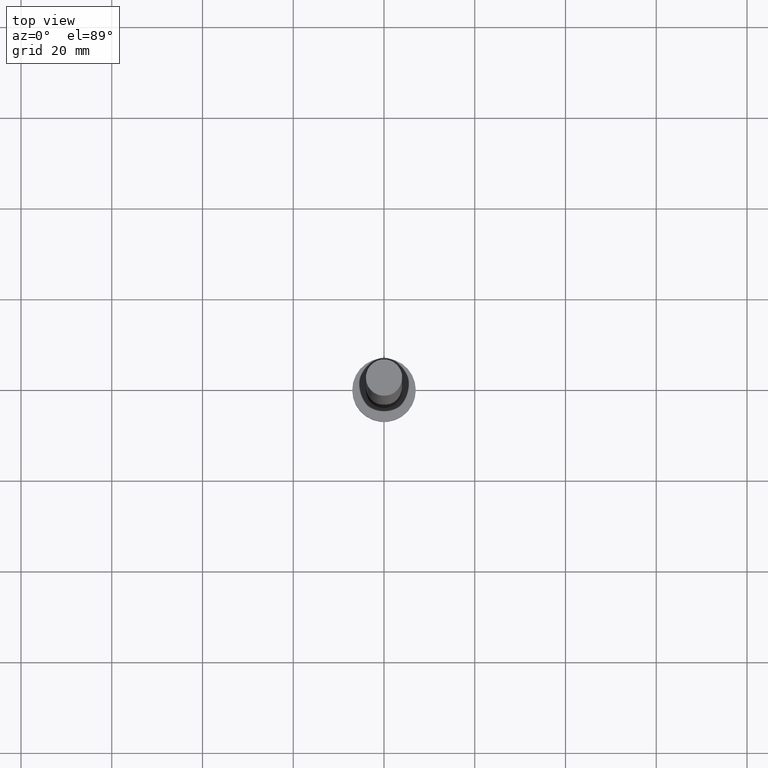
[diagram: clean part render]
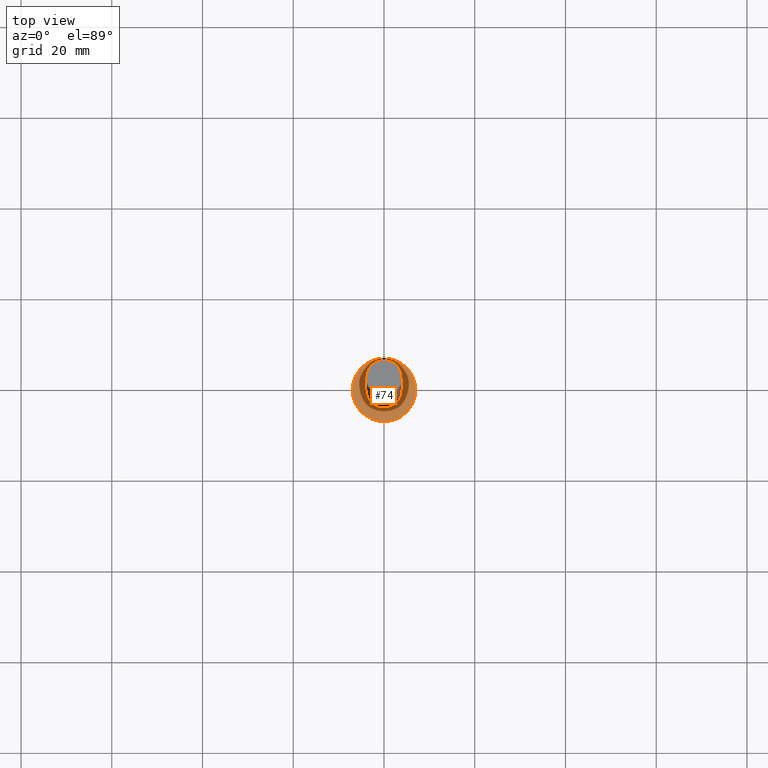
[diagram: same view with one face highlighted and labeled with its STEP entity id]
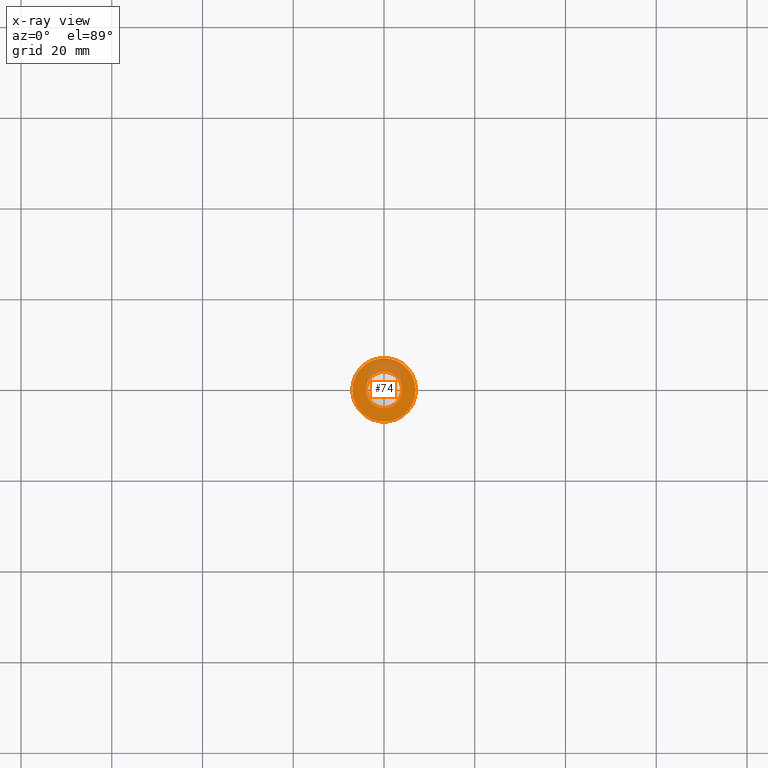
[diagram: x-ray of the same camera — body ghosted, the highlighted face saturated]
A machine part, top view. The second image highlights one B-rep face of the part: STEP entity #74.
The next image is the same camera in x-ray: the body ghosted, the highlighted face saturated — about 21% of this face is hidden behind the body in this view.
In plain terms, the highlighted planar face has unit normal (0, 0, 1).
Its self-contained STEP definition (entity closure, byte-faithful):
#2 = CIRCLE ( 'NONE', #124, 7.000000000000000000 ) ;
#4 = FACE_OUTER_BOUND ( 'NONE', #171, .T. ) ;
#18 = CIRCLE ( 'NONE', #216, 4.000000000000000000 ) ;
#27 = DIRECTION ( 'NONE',  ( 1.000000000000000000, 0.000000000000000000, 0.000000000000000000 ) ) ;
#42 = ORIENTED_EDGE ( 'NONE', *, *, #188, .T. ) ;
#44 = VERTEX_POINT ( 'NONE', #238 ) ;
#47 = DIRECTION ( 'NONE',  ( 1.000000000000000000, 0.000000000000000000, 0.000000000000000000 ) ) ;
#48 = CARTESIAN_POINT ( 'NONE',  ( 7.000000000000000000, 8.572527594031473190E-16, 5.000000000000000000 ) ) ;
#52 = AXIS2_PLACEMENT_3D ( 'NONE', #69, #64, #27 ) ;
#64 = DIRECTION ( 'NONE',  ( 0.000000000000000000, 0.000000000000000000, 1.000000000000000000 ) ) ;
#66 = CARTESIAN_POINT ( 'NONE',  ( 0.000000000000000000, 0.000000000000000000, 5.000000000000000000 ) ) ;
#67 = DIRECTION ( 'NONE',  ( 1.000000000000000000, 0.000000000000000000, 0.000000000000000000 ) ) ;
#69 = CARTESIAN_POINT ( 'NONE',  ( 0.000000000000000000, 0.000000000000000000, 5.000000000000000000 ) ) ;
#74 = ADVANCED_FACE ( 'NONE', ( #156, #4 ), #202, .T. ) ;
#85 = AXIS2_PLACEMENT_3D ( 'NONE', #180, #234, #223 ) ;
#90 = DIRECTION ( 'NONE',  ( 0.000000000000000000, 0.000000000000000000, 1.000000000000000000 ) ) ;
#97 = VERTEX_POINT ( 'NONE', #112 ) ;
#99 = EDGE_CURVE ( 'NONE', #44, #97, #18, .T. ) ;
#105 = DIRECTION ( 'NONE',  ( 0.000000000000000000, 0.000000000000000000, 1.000000000000000000 ) ) ;
#112 = CARTESIAN_POINT ( 'NONE',  ( 4.000000000000000000, 4.898587196589412829E-16, 5.000000000000000000 ) ) ;
#115 = CIRCLE ( 'NONE', #230, 7.000000000000000000 ) ;
#124 = AXIS2_PLACEMENT_3D ( 'NONE', #66, #105, #185 ) ;
#133 = VERTEX_POINT ( 'NONE', #48 ) ;
#137 = CARTESIAN_POINT ( 'NONE',  ( 0.000000000000000000, 0.000000000000000000, 5.000000000000000000 ) ) ;
#147 = EDGE_CURVE ( 'NONE', #97, #44, #253, .T. ) ;
#156 = FACE_BOUND ( 'NONE', #240, .T. ) ;
#159 = ORIENTED_EDGE ( 'NONE', *, *, #147, .F. ) ;
#164 = CARTESIAN_POINT ( 'NONE',  ( 0.000000000000000000, 0.000000000000000000, 5.000000000000000000 ) ) ;
#171 = EDGE_LOOP ( 'NONE', ( #42, #222 ) ) ;
#180 = CARTESIAN_POINT ( 'NONE',  ( 0.000000000000000000, 0.000000000000000000, 5.000000000000000000 ) ) ;
#185 = DIRECTION ( 'NONE',  ( 1.000000000000000000, 0.000000000000000000, 0.000000000000000000 ) ) ;
#188 = EDGE_CURVE ( 'NONE', #197, #133, #115, .T. ) ;
#197 = VERTEX_POINT ( 'NONE', #207 ) ;
#202 = PLANE ( 'NONE',  #85 ) ;
#207 = CARTESIAN_POINT ( 'NONE',  ( -7.000000000000000000, 0.000000000000000000, 5.000000000000000000 ) ) ;
#216 = AXIS2_PLACEMENT_3D ( 'NONE', #137, #224, #47 ) ;
#222 = ORIENTED_EDGE ( 'NONE', *, *, #246, .T. ) ;
#223 = DIRECTION ( 'NONE',  ( 1.000000000000000000, 0.000000000000000000, -0.000000000000000000 ) ) ;
#224 = DIRECTION ( 'NONE',  ( 0.000000000000000000, 0.000000000000000000, 1.000000000000000000 ) ) ;
#230 = AXIS2_PLACEMENT_3D ( 'NONE', #164, #90, #67 ) ;
#234 = DIRECTION ( 'NONE',  ( 0.000000000000000000, 0.000000000000000000, 1.000000000000000000 ) ) ;
#238 = CARTESIAN_POINT ( 'NONE',  ( -4.000000000000000000, 0.000000000000000000, 5.000000000000000000 ) ) ;
#239 = ORIENTED_EDGE ( 'NONE', *, *, #99, .F. ) ;
#240 = EDGE_LOOP ( 'NONE', ( #239, #159 ) ) ;
#246 = EDGE_CURVE ( 'NONE', #133, #197, #2, .T. ) ;
#253 = CIRCLE ( 'NONE', #52, 4.000000000000000000 ) ;